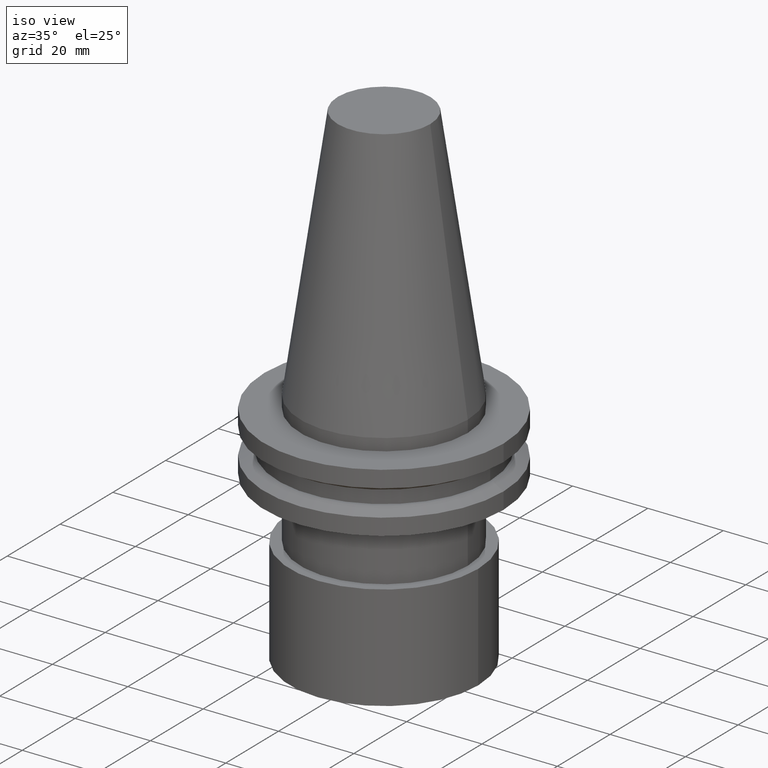
[diagram: clean part render]
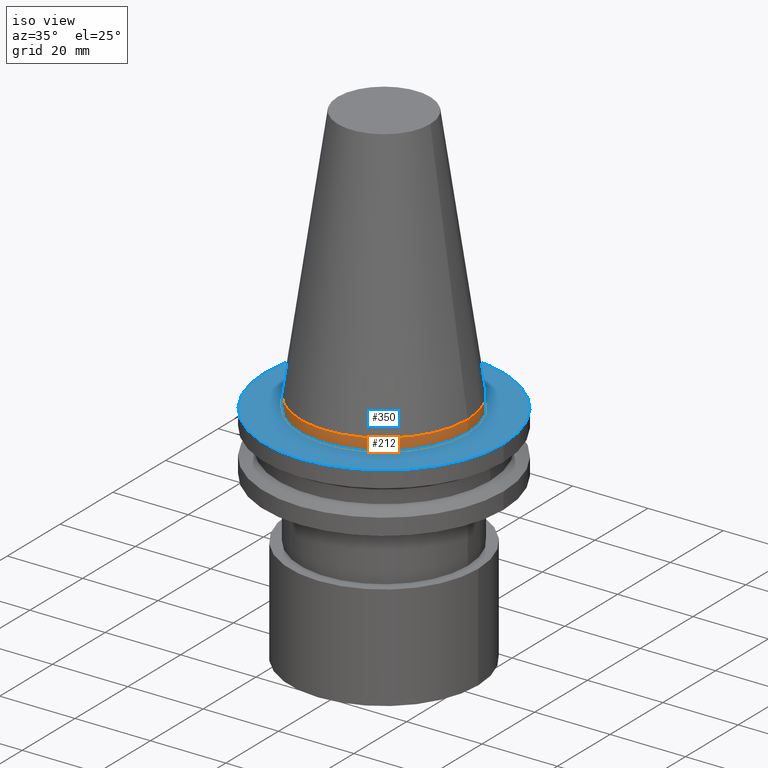
[diagram: same view with the hole feature highlighted: cylindrical wall and planar end face, labeled with their STEP entity ids]
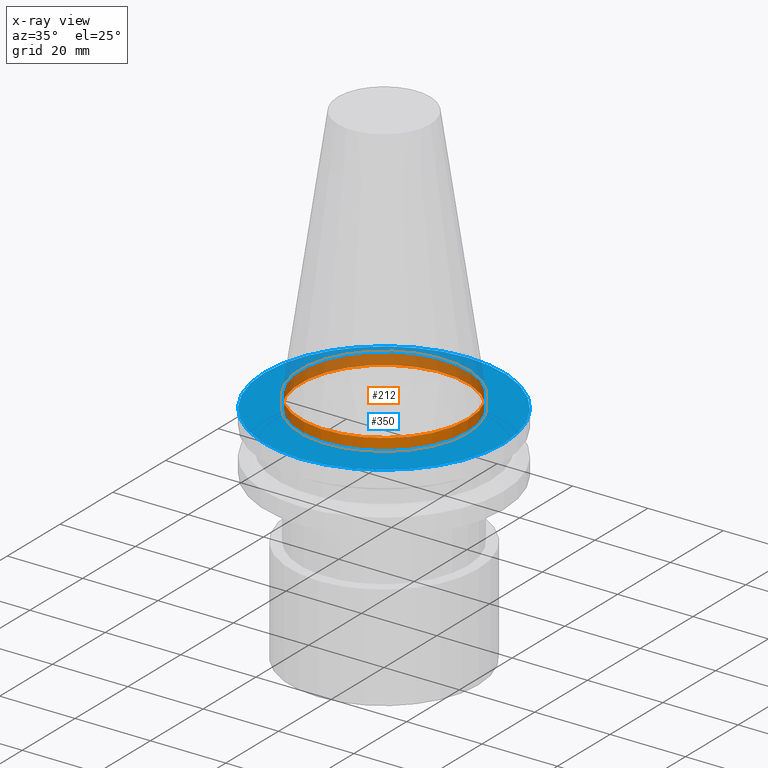
[diagram: x-ray of the same camera — body ghosted, the hole faces saturated]
A machine part, iso view. The highlighted faces form one hole feature of diameter 44.45 mm: the cylindrical wall (entity #212, orange) and its adjacent planar end face (entity #350, blue) — they share a circular edge in the B-rep.
The next image is the same camera in x-ray (body ghosted, the hole faces saturated) — the bore reads through the body.
Wall:
#2 = VERTEX_POINT ( 'NONE', #281 ) ;
#9 = CARTESIAN_POINT ( 'NONE',  ( 0.000000000000000000, 0.000000000000000000, 0.000000000000000000 ) ) ;
#16 = EDGE_CURVE ( 'NONE', #26, #26, #93, .T. ) ;
#26 = VERTEX_POINT ( 'NONE', #51 ) ;
#28 = DIRECTION ( 'NONE',  ( -0.000000000000000000, -0.000000000000000000, 1.000000000000000000 ) ) ;
#38 = AXIS2_PLACEMENT_3D ( 'NONE', #378, #28, #210 ) ;
#45 = DIRECTION ( 'NONE',  ( -0.000000000000000000, -0.000000000000000000, 1.000000000000000000 ) ) ;
#51 = CARTESIAN_POINT ( 'NONE',  ( 22.22500000000000142, 0.000000000000000000, -3.174999999999997158 ) ) ;
#64 = ORIENTED_EDGE ( 'NONE', *, *, #16, .T. ) ;
#76 = CYLINDRICAL_SURFACE ( 'NONE', #359, 22.22500000000000142 ) ;
#83 = EDGE_CURVE ( 'NONE', #2, #2, #318, .T. ) ;
#93 = CIRCLE ( 'NONE', #38, 22.22500000000000142 ) ;
#96 = EDGE_LOOP ( 'NONE', ( #392 ) ) ;
#123 = EDGE_LOOP ( 'NONE', ( #64 ) ) ;
#159 = CARTESIAN_POINT ( 'NONE',  ( 0.000000000000000000, 0.000000000000000000, 68.25000000000000000 ) ) ;
#168 = FACE_OUTER_BOUND ( 'NONE', #123, .T. ) ;
#199 = DIRECTION ( 'NONE',  ( 1.000000000000000000, 0.000000000000000000, 0.000000000000000000 ) ) ;
#210 = DIRECTION ( 'NONE',  ( 1.000000000000000000, 0.000000000000000000, 0.000000000000000000 ) ) ;
#212 = ADVANCED_FACE ( 'NONE', ( #364, #168 ), #76, .T. ) ;
#249 = AXIS2_PLACEMENT_3D ( 'NONE', #9, #251, #379 ) ;
#251 = DIRECTION ( 'NONE',  ( -0.000000000000000000, -0.000000000000000000, 1.000000000000000000 ) ) ;
#281 = CARTESIAN_POINT ( 'NONE',  ( 22.22500000000000142, 0.000000000000000000, 0.000000000000000000 ) ) ;
#318 = CIRCLE ( 'NONE', #249, 22.22500000000000142 ) ;
#359 = AXIS2_PLACEMENT_3D ( 'NONE', #159, #45, #199 ) ;
#364 = FACE_OUTER_BOUND ( 'NONE', #96, .T. ) ;
#378 = CARTESIAN_POINT ( 'NONE',  ( 0.000000000000000000, 0.000000000000000000, -3.174999999999997158 ) ) ;
#379 = DIRECTION ( 'NONE',  ( 1.000000000000000000, 0.000000000000000000, 0.000000000000000000 ) ) ;
#392 = ORIENTED_EDGE ( 'NONE', *, *, #83, .F. ) ;
End face:
#15 = DIRECTION ( 'NONE',  ( 1.000000000000000000, 0.000000000000000000, 0.000000000000000000 ) ) ;
#16 = EDGE_CURVE ( 'NONE', #26, #26, #93, .T. ) ;
#26 = VERTEX_POINT ( 'NONE', #51 ) ;
#28 = DIRECTION ( 'NONE',  ( -0.000000000000000000, -0.000000000000000000, 1.000000000000000000 ) ) ;
#33 = DIRECTION ( 'NONE',  ( 0.000000000000000000, 0.000000000000000000, -1.000000000000000000 ) ) ;
#35 = EDGE_LOOP ( 'NONE', ( #240 ) ) ;
#38 = AXIS2_PLACEMENT_3D ( 'NONE', #378, #28, #210 ) ;
#51 = CARTESIAN_POINT ( 'NONE',  ( 22.22500000000000142, 0.000000000000000000, -3.174999999999997158 ) ) ;
#57 = ORIENTED_EDGE ( 'NONE', *, *, #16, .F. ) ;
#84 = EDGE_CURVE ( 'NONE', #358, #358, #230, .T. ) ;
#93 = CIRCLE ( 'NONE', #38, 22.22500000000000142 ) ;
#121 = FACE_BOUND ( 'NONE', #312, .T. ) ;
#177 = DIRECTION ( 'NONE',  ( -1.000000000000000000, 0.000000000000000000, -0.000000000000000000 ) ) ;
#182 = PLANE ( 'NONE',  #250 ) ;
#187 = CARTESIAN_POINT ( 'NONE',  ( 0.000000000000000000, 0.000000000000000000, -3.174999999999997158 ) ) ;
#210 = DIRECTION ( 'NONE',  ( 1.000000000000000000, 0.000000000000000000, 0.000000000000000000 ) ) ;
#230 = CIRCLE ( 'NONE', #330, 31.75000000000000000 ) ;
#240 = ORIENTED_EDGE ( 'NONE', *, *, #84, .T. ) ;
#250 = AXIS2_PLACEMENT_3D ( 'NONE', #320, #33, #177 ) ;
#283 = CARTESIAN_POINT ( 'NONE',  ( 31.75000000000000000, 0.000000000000000000, -3.174999999999997158 ) ) ;
#312 = EDGE_LOOP ( 'NONE', ( #57 ) ) ;
#320 = CARTESIAN_POINT ( 'NONE',  ( 0.000000000000000000, 31.75000000000000000, -3.174999999999993605 ) ) ;
#330 = AXIS2_PLACEMENT_3D ( 'NONE', #187, #333, #15 ) ;
#333 = DIRECTION ( 'NONE',  ( -0.000000000000000000, -0.000000000000000000, 1.000000000000000000 ) ) ;
#349 = FACE_OUTER_BOUND ( 'NONE', #35, .T. ) ;
#350 = ADVANCED_FACE ( 'NONE', ( #121, #349 ), #182, .F. ) ;
#358 = VERTEX_POINT ( 'NONE', #283 ) ;
#378 = CARTESIAN_POINT ( 'NONE',  ( 0.000000000000000000, 0.000000000000000000, -3.174999999999997158 ) ) ;